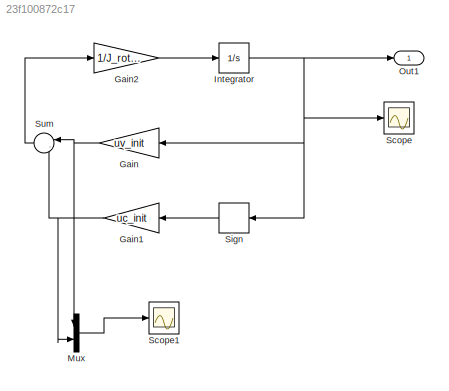
MODEL slx_23f100872c17
KIND model
CONFIG AbsTol = auto
CONFIG EnableMultiTasking = off
CONFIG FixedStep = auto
CONFIG MaxStep = 0.01
CONFIG MinStep = auto
CONFIG RelTol = 1e-3
CONFIG SampleTimeConstraint = Unconstrained
CONFIG SolverName = ode45
CONFIG StartTime = 0
CONFIG StopTime = T(end)
BLOCK [Gain] Gain
  Gain = uv_init
  NameLocation = top
BLOCK [Gain] Gain1
  Gain = uc_init
  NameLocation = top
BLOCK [Gain] Gain2
  Gain = 1/J_rotor
BLOCK [Integrator] Integrator
  InitialCondition = omega0
BLOCK [Mux] Mux
  DisplayOption = bar
  Inputs = 2
BLOCK [Outport] Out1
  SignalName = omega_sim
  VectorParamsAs1DForOutWhenUnconnected = off
BLOCK [Scope] Scope
  Floating = off
  NumInputPorts = 1
  ScopeSpecificationString = Simulink.scopes.TimeScopeBlockCfg('CurrentConfiguration', extmgr.ConfigurationSet(extmgr.Configuration('Core','General UI',true),extmgr.Configuration('Core','Source UI',true),extmgr.Configuration('Sources','WiredSimulink',true),extmgr.Configuration('Visuals','Time Domain',true,'SerializedDisplays',{struct('MinYLimReal','-45.69314','MaxYLimReal','474.58214','YLabelReal','','MinYLimMag','0.00000','M...<+1330ch>
BLOCK [Scope] Scope1
  Floating = off
  NumInputPorts = 1
  ScopeSpecificationString = Simulink.scopes.TimeScopeBlockCfg('CurrentConfiguration', extmgr.ConfigurationSet(extmgr.Configuration('Core','General UI',true),extmgr.Configuration('Core','Source UI',true),extmgr.Configuration('Sources','WiredSimulink',true,'DataLoggingVariableName','ScopeData1'),extmgr.Configuration('Visuals','Time Domain',true,'SerializedDisplays',{struct('MinYLimReal','-0.00021','MaxYLimReal','0.0022','YLabe...<+1385ch>
BLOCK [Signum] Sign
  NameLocation = top
  ZeroCross = off
BLOCK [Sum] Sum
  Inputs = |--
  NameLocation = top
NET Gain1:1 -> Mux:2, Sum:2
LINE Gain2:1 -> Integrator:1
NET Gain:1 -> Mux:1, Sum:1
NET Integrator:1 -> Gain:1, Out1:1, Scope:1, Sign:1
LINE Mux:1 -> Scope1:1
LINE Sign:1 -> Gain1:1
LINE Sum:1 -> Gain2:1
note: NET lines group one-source signal fan-out (src -> all destinations, sorted); 1:1 wires keep LINE
